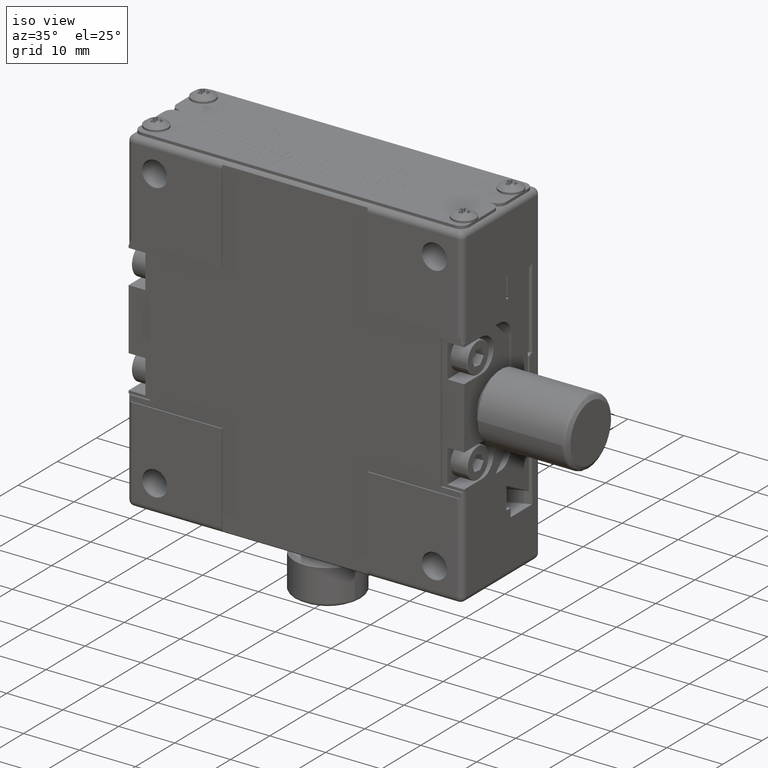
[diagram: clean part render]
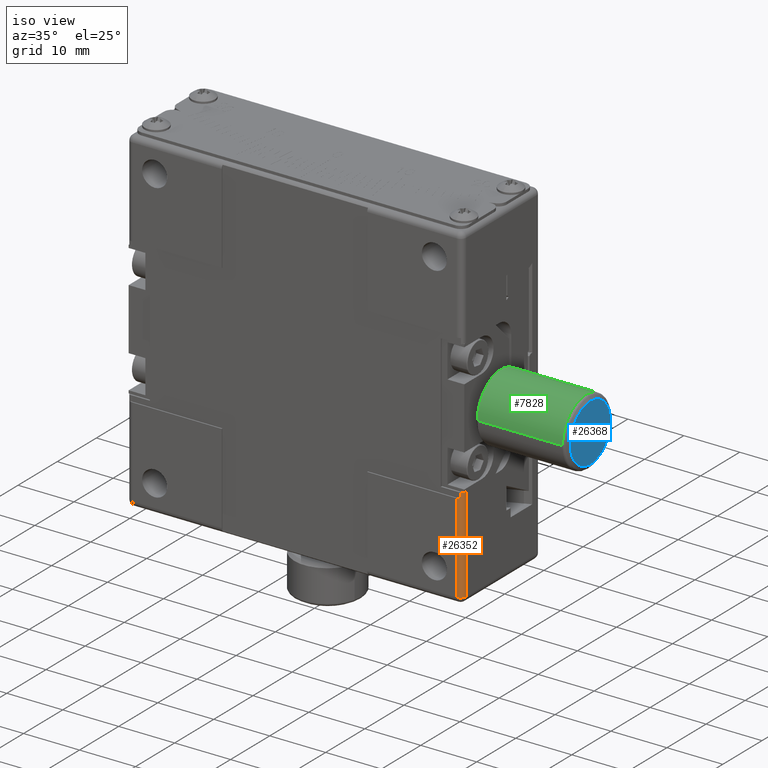
[diagram: same view with three faces highlighted in distinct colors, each labeled with its STEP entity id]
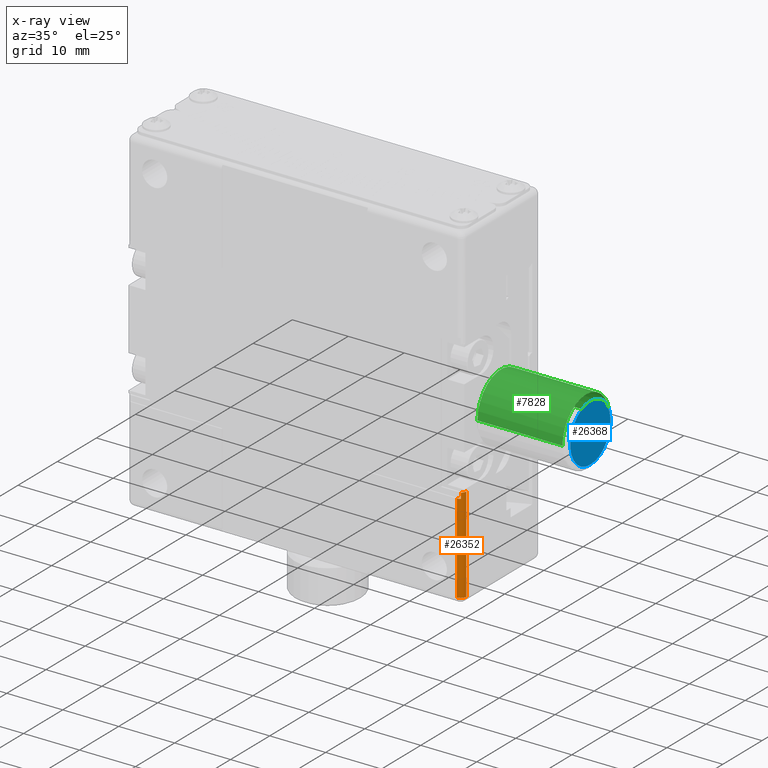
[diagram: x-ray of the same camera — body ghosted, the three highlighted faces saturated]
A machine part, iso view with three faces highlighted in distinct colors.
The next image is the same camera in x-ray (body ghosted, the three faces saturated) — at least one of them is partly hidden behind the body in this view.
Their STEP definitions:

[orange] entity #26352 — the highlighted cylindrical surface (edge-blend (fillet) strip) has radius 1 mm, axis along (0, 0, -1).
#99 = DIRECTION ( 'NONE',  ( 0.000000000000000000, 0.000000000000000000, -1.000000000000000000 ) ) ;
#1447 = DIRECTION ( 'NONE',  ( 0.000000000000000000, 1.000000000000000000, 0.000000000000000000 ) ) ;
#1582 = VECTOR ( 'NONE', #11756, 1000.000000000000000 ) ;
#2048 = ORIENTED_EDGE ( 'NONE', *, *, #35219, .F. ) ;
#2586 = EDGE_CURVE ( 'NONE', #21327, #30931, #4073, .T. ) ;
#3557 = EDGE_CURVE ( 'NONE', #13320, #24348, #34860, .T. ) ;
#4073 = LINE ( 'NONE', #21216, #36678 ) ;
#4799 = CARTESIAN_POINT ( 'NONE',  ( 29.20294266869609956, -24.39231131468095271, -12.00000000000000000 ) ) ;
#4973 = ORIENTED_EDGE ( 'NONE', *, *, #2586, .F. ) ;
#5920 = CARTESIAN_POINT ( 'NONE',  ( 29.80294266869604769, -25.19231131468094986, -12.00000000000000000 ) ) ;
#6199 = ORIENTED_EDGE ( 'NONE', *, *, #32967, .F. ) ;
#7917 = CARTESIAN_POINT ( 'NONE',  ( 29.20294266869609956, -25.39231131468095271, 30.00000000000000000 ) ) ;
#8161 = EDGE_CURVE ( 'NONE', #31283, #30469, #13157, .T. ) ;
#8934 = EDGE_CURVE ( 'NONE', #24348, #11869, #14898, .T. ) ;
#11014 = DIRECTION ( 'NONE',  ( 8.351738847375898591E-43, 8.673617379884030739E-15, 1.000000000000000000 ) ) ;
#11651 = DIRECTION ( 'NONE',  ( -1.000000000000000000, 0.000000000000000000, 0.000000000000000000 ) ) ;
#11667 = CIRCLE ( 'NONE', #19983, 1.000000000000000888 ) ;
#11756 = DIRECTION ( 'NONE',  ( 0.000000000000000000, 0.000000000000000000, 1.000000000000000000 ) ) ;
#11869 = VERTEX_POINT ( 'NONE', #21934 ) ;
#12168 = ORIENTED_EDGE ( 'NONE', *, *, #8161, .F. ) ;
#12860 = CIRCLE ( 'NONE', #33692, 1.000000000000000888 ) ;
#13157 = LINE ( 'NONE', #7917, #19620 ) ;
#13320 = VERTEX_POINT ( 'NONE', #24070 ) ;
#13861 = CARTESIAN_POINT ( 'NONE',  ( 29.20294266869609956, -25.39231131468095271, -13.00000000000000000 ) ) ;
#14792 = DIRECTION ( 'NONE',  ( 0.000000000000000000, 1.000000000000000000, 0.000000000000000000 ) ) ;
#14898 = CIRCLE ( 'NONE', #35154, 1.000000000000000888 ) ;
#15149 = DIRECTION ( 'NONE',  ( 0.000000000000000000, 0.000000000000000000, 1.000000000000000000 ) ) ;
#15443 = EDGE_LOOP ( 'NONE', ( #19328, #12168, #6199, #4973, #2048, #18658, #25963 ) ) ;
#15674 = CARTESIAN_POINT ( 'NONE',  ( 30.20294266869610311, -24.39231131468095271, -29.00000000000000000 ) ) ;
#16476 = DIRECTION ( 'NONE',  ( 0.000000000000000000, 0.000000000000000000, 1.000000000000000000 ) ) ;
#16671 = AXIS2_PLACEMENT_3D ( 'NONE', #22838, #99, #11651 ) ;
#18124 = DIRECTION ( 'NONE',  ( -1.000000000000000000, 0.000000000000000000, 0.000000000000000000 ) ) ;
#18607 = DIRECTION ( 'NONE',  ( 0.000000000000000000, 0.000000000000000000, -1.000000000000000000 ) ) ;
#18658 = ORIENTED_EDGE ( 'NONE', *, *, #8934, .F. ) ;
#19328 = ORIENTED_EDGE ( 'NONE', *, *, #33375, .F. ) ;
#19620 = VECTOR ( 'NONE', #16476, 1000.000000000000000 ) ;
#19983 = AXIS2_PLACEMENT_3D ( 'NONE', #35295, #21818, #18124 ) ;
#21216 = CARTESIAN_POINT ( 'NONE',  ( 30.20294266869610311, -24.39231131468095271, 30.00000000000000000 ) ) ;
#21327 = VERTEX_POINT ( 'NONE', #30149 ) ;
#21818 = DIRECTION ( 'NONE',  ( 0.000000000000000000, 0.000000000000000000, -1.000000000000000000 ) ) ;
#21934 = CARTESIAN_POINT ( 'NONE',  ( 30.06896807248055126, -24.89231131468095271, -12.00000000000000000 ) ) ;
#22378 = DIRECTION ( 'NONE',  ( 3.469446951953611033E-15, 1.000000000000000000, -8.673617379884027583E-15 ) ) ;
#22838 = CARTESIAN_POINT ( 'NONE',  ( 29.20294266869609956, -24.39231131468095271, 30.00000000000000000 ) ) ;
#23020 = CYLINDRICAL_SURFACE ( 'NONE', #16671, 1.000000000000000888 ) ;
#24070 = CARTESIAN_POINT ( 'NONE',  ( 29.80294266869604769, -25.19231131468094986, -13.00000000000000000 ) ) ;
#24348 = VERTEX_POINT ( 'NONE', #5920 ) ;
#24845 = CIRCLE ( 'NONE', #31414, 1.000000000000000888 ) ;
#25963 = ORIENTED_EDGE ( 'NONE', *, *, #3557, .F. ) ;
#26352 = ADVANCED_FACE ( 'NONE', ( #33843 ), #23020, .T. ) ;
#26477 = CARTESIAN_POINT ( 'NONE',  ( 29.20294266869609956, -25.39231131468095271, -29.00000000000000000 ) ) ;
#26668 = CARTESIAN_POINT ( 'NONE',  ( 29.80294266869610098, -25.19231131468094986, -13.00000000000000000 ) ) ;
#27189 = DIRECTION ( 'NONE',  ( 0.000000000000000000, 0.000000000000000000, 1.000000000000000000 ) ) ;
#29156 = CARTESIAN_POINT ( 'NONE',  ( 29.20294266869609956, -24.39231131468095271, -12.00000000000000000 ) ) ;
#30149 = CARTESIAN_POINT ( 'NONE',  ( 30.20294266869610311, -24.39231131468095271, -12.00000000000000000 ) ) ;
#30469 = VERTEX_POINT ( 'NONE', #13861 ) ;
#30931 = VERTEX_POINT ( 'NONE', #15674 ) ;
#31283 = VERTEX_POINT ( 'NONE', #26477 ) ;
#31414 = AXIS2_PLACEMENT_3D ( 'NONE', #29156, #15149, #14792 ) ;
#32967 = EDGE_CURVE ( 'NONE', #30931, #31283, #11667, .T. ) ;
#33375 = EDGE_CURVE ( 'NONE', #30469, #13320, #12860, .T. ) ;
#33692 = AXIS2_PLACEMENT_3D ( 'NONE', #36556, #11014, #22378 ) ;
#33843 = FACE_OUTER_BOUND ( 'NONE', #15443, .T. ) ;
#34860 = LINE ( 'NONE', #26668, #1582 ) ;
#35154 = AXIS2_PLACEMENT_3D ( 'NONE', #4799, #27189, #1447 ) ;
#35219 = EDGE_CURVE ( 'NONE', #11869, #21327, #24845, .T. ) ;
#35295 = CARTESIAN_POINT ( 'NONE',  ( 29.20294266869609956, -24.39231131468095271, -29.00000000000000000 ) ) ;
#36556 = CARTESIAN_POINT ( 'NONE',  ( 29.20294266869609956, -24.39231131468095271, -13.00000000000000000 ) ) ;
#36678 = VECTOR ( 'NONE', #18607, 1000.000000000000000 ) ;

[blue] entity #26368 — the highlighted planar face has unit normal (-1, -0, 0).
#2171 = CARTESIAN_POINT ( 'NONE',  ( 48.20294266869609601, -18.39231131468094915, -3.469446951953614978E-15 ) ) ;
#2308 = CIRCLE ( 'NONE', #25584, 5.133974596215549191 ) ;
#2674 = EDGE_CURVE ( 'NONE', #26330, #18763, #27756, .T. ) ;
#2687 = CARTESIAN_POINT ( 'NONE',  ( 48.20294266869609601, -18.39231131468094915, -3.469446951953614978E-15 ) ) ;
#5367 = AXIS2_PLACEMENT_3D ( 'NONE', #2687, #34209, #5862 ) ;
#5862 = DIRECTION ( 'NONE',  ( -6.212580450732298775E-17, 1.000000000000000000, 0.000000000000000000 ) ) ;
#6862 = DIRECTION ( 'NONE',  ( 1.000000000000000000, 0.000000000000000000, 0.000000000000000000 ) ) ;
#8493 = PLANE ( 'NONE',  #5367 ) ;
#10228 = ORIENTED_EDGE ( 'NONE', *, *, #2674, .T. ) ;
#10376 = ORIENTED_EDGE ( 'NONE', *, *, #23404, .T. ) ;
#13949 = DIRECTION ( 'NONE',  ( 0.000000000000000000, 0.000000000000000000, -1.000000000000000000 ) ) ;
#14003 = CARTESIAN_POINT ( 'NONE',  ( 48.20294266869609601, -18.39231131468094915, -5.133974596215549191 ) ) ;
#16733 = DIRECTION ( 'NONE',  ( 1.000000000000000000, 0.000000000000000000, 0.000000000000000000 ) ) ;
#18603 = CARTESIAN_POINT ( 'NONE',  ( 48.20294266869609601, -18.39231131468094915, -3.469446951953614978E-15 ) ) ;
#18763 = VERTEX_POINT ( 'NONE', #14003 ) ;
#20034 = FACE_OUTER_BOUND ( 'NONE', #22432, .T. ) ;
#22432 = EDGE_LOOP ( 'NONE', ( #10228, #10376 ) ) ;
#23404 = EDGE_CURVE ( 'NONE', #18763, #26330, #2308, .T. ) ;
#25584 = AXIS2_PLACEMENT_3D ( 'NONE', #18603, #6862, #29985 ) ;
#26330 = VERTEX_POINT ( 'NONE', #34033 ) ;
#26368 = ADVANCED_FACE ( 'NONE', ( #20034 ), #8493, .F. ) ;
#27756 = CIRCLE ( 'NONE', #30123, 5.133974596215549191 ) ;
#29985 = DIRECTION ( 'NONE',  ( 0.000000000000000000, 0.000000000000000000, -1.000000000000000000 ) ) ;
#30123 = AXIS2_PLACEMENT_3D ( 'NONE', #2171, #16733, #13949 ) ;
#34033 = CARTESIAN_POINT ( 'NONE',  ( 48.20294266869609601, -18.39231131468094915, 5.133974596215549191 ) ) ;
#34209 = DIRECTION ( 'NONE',  ( -1.000000000000000000, -6.212580450732298775E-17, 0.000000000000000000 ) ) ;

[green] entity #7828 — the highlighted cylindrical surface (partial cylindrical patch) has radius 6 mm, axis along (-1, 0, 0).
#1208 = DIRECTION ( 'NONE',  ( 0.000000000000000000, 0.000000000000000000, -1.000000000000000000 ) ) ;
#1991 = DIRECTION ( 'NONE',  ( -1.000000000000000000, -6.212580450732298775E-17, 0.000000000000000000 ) ) ;
#2151 = CARTESIAN_POINT ( 'NONE',  ( 23.23348241765425115, -24.39231131468095271, -3.469446951953614978E-15 ) ) ;
#2589 = CARTESIAN_POINT ( 'NONE',  ( 32.20294266869609601, -18.39231131468094915, -3.469446951953614978E-15 ) ) ;
#2725 = EDGE_CURVE ( 'NONE', #29096, #34497, #8159, .T. ) ;
#3538 = AXIS2_PLACEMENT_3D ( 'NONE', #23167, #29677, #28941 ) ;
#4052 = EDGE_CURVE ( 'NONE', #29096, #6195, #8793, .T. ) ;
#4257 = ORIENTED_EDGE ( 'NONE', *, *, #11892, .F. ) ;
#5337 = DIRECTION ( 'NONE',  ( 0.000000000000000000, 0.000000000000000000, -1.000000000000000000 ) ) ;
#6195 = VERTEX_POINT ( 'NONE', #6802 ) ;
#6802 = CARTESIAN_POINT ( 'NONE',  ( 47.41426753410129891, -18.39231131468094915, 6.000000000000000000 ) ) ;
#7770 = LINE ( 'NONE', #2151, #24864 ) ;
#7828 = ADVANCED_FACE ( 'NONE', ( #17546 ), #18283, .T. ) ;
#7890 = VERTEX_POINT ( 'NONE', #35628 ) ;
#8159 = LINE ( 'NONE', #8354, #9926 ) ;
#8354 = CARTESIAN_POINT ( 'NONE',  ( 23.23348241765425115, -12.39231131468091895, -2.734658872465204483E-15 ) ) ;
#8793 = CIRCLE ( 'NONE', #36762, 6.000000000000000000 ) ;
#9926 = VECTOR ( 'NONE', #1991, 1000.000000000000000 ) ;
#10424 = ORIENTED_EDGE ( 'NONE', *, *, #13438, .T. ) ;
#10634 = DIRECTION ( 'NONE',  ( 1.000000000000000000, 0.000000000000000000, 0.000000000000000000 ) ) ;
#10941 = CARTESIAN_POINT ( 'NONE',  ( 47.41426753410129891, -18.39231131468094915, -3.469446951953614978E-15 ) ) ;
#11892 = EDGE_CURVE ( 'NONE', #7890, #31445, #7770, .T. ) ;
#12305 = CARTESIAN_POINT ( 'NONE',  ( 32.20294266869609601, -12.39231131468091895, -2.734658872465199750E-15 ) ) ;
#13111 = AXIS2_PLACEMENT_3D ( 'NONE', #10941, #25115, #5337 ) ;
#13438 = EDGE_CURVE ( 'NONE', #34497, #31445, #21454, .T. ) ;
#14313 = CARTESIAN_POINT ( 'NONE',  ( 47.41426753410129891, -12.39231131468091895, -2.734658872465199750E-15 ) ) ;
#16447 = ORIENTED_EDGE ( 'NONE', *, *, #28136, .F. ) ;
#17546 = FACE_OUTER_BOUND ( 'NONE', #27939, .T. ) ;
#18283 = CYLINDRICAL_SURFACE ( 'NONE', #3538, 5.999999999999998224 ) ;
#21218 = CARTESIAN_POINT ( 'NONE',  ( 32.20294266869609601, -24.39231131468095271, -3.469446951953614978E-15 ) ) ;
#21454 = CIRCLE ( 'NONE', #29230, 6.000000000000000000 ) ;
#21491 = ORIENTED_EDGE ( 'NONE', *, *, #4052, .F. ) ;
#21993 = DIRECTION ( 'NONE',  ( 0.000000000000000000, 1.000000000000000000, 0.000000000000000000 ) ) ;
#23167 = CARTESIAN_POINT ( 'NONE',  ( 23.23348241765425115, -18.39231131468094915, -3.469446951953614978E-15 ) ) ;
#24864 = VECTOR ( 'NONE', #33681, 1000.000000000000000 ) ;
#25115 = DIRECTION ( 'NONE',  ( 1.000000000000000000, 0.000000000000000000, 0.000000000000000000 ) ) ;
#27939 = EDGE_LOOP ( 'NONE', ( #21491, #35832, #10424, #4257, #16447 ) ) ;
#28136 = EDGE_CURVE ( 'NONE', #6195, #7890, #29214, .T. ) ;
#28941 = DIRECTION ( 'NONE',  ( 0.000000000000000000, -1.000000000000000000, 0.000000000000000000 ) ) ;
#29096 = VERTEX_POINT ( 'NONE', #14313 ) ;
#29214 = CIRCLE ( 'NONE', #13111, 6.000000000000000000 ) ;
#29230 = AXIS2_PLACEMENT_3D ( 'NONE', #2589, #10634, #21993 ) ;
#29677 = DIRECTION ( 'NONE',  ( -1.000000000000000000, 0.000000000000000000, 0.000000000000000000 ) ) ;
#29920 = CARTESIAN_POINT ( 'NONE',  ( 47.41426753410129891, -18.39231131468094915, -3.469446951953614978E-15 ) ) ;
#31445 = VERTEX_POINT ( 'NONE', #21218 ) ;
#33064 = DIRECTION ( 'NONE',  ( 1.000000000000000000, 0.000000000000000000, 0.000000000000000000 ) ) ;
#33681 = DIRECTION ( 'NONE',  ( -1.000000000000000000, -6.212580450732298775E-17, 0.000000000000000000 ) ) ;
#34497 = VERTEX_POINT ( 'NONE', #12305 ) ;
#35628 = CARTESIAN_POINT ( 'NONE',  ( 47.41426753410129891, -24.39231131468095271, -3.469446951953614978E-15 ) ) ;
#35832 = ORIENTED_EDGE ( 'NONE', *, *, #2725, .T. ) ;
#36762 = AXIS2_PLACEMENT_3D ( 'NONE', #29920, #33064, #1208 ) ;